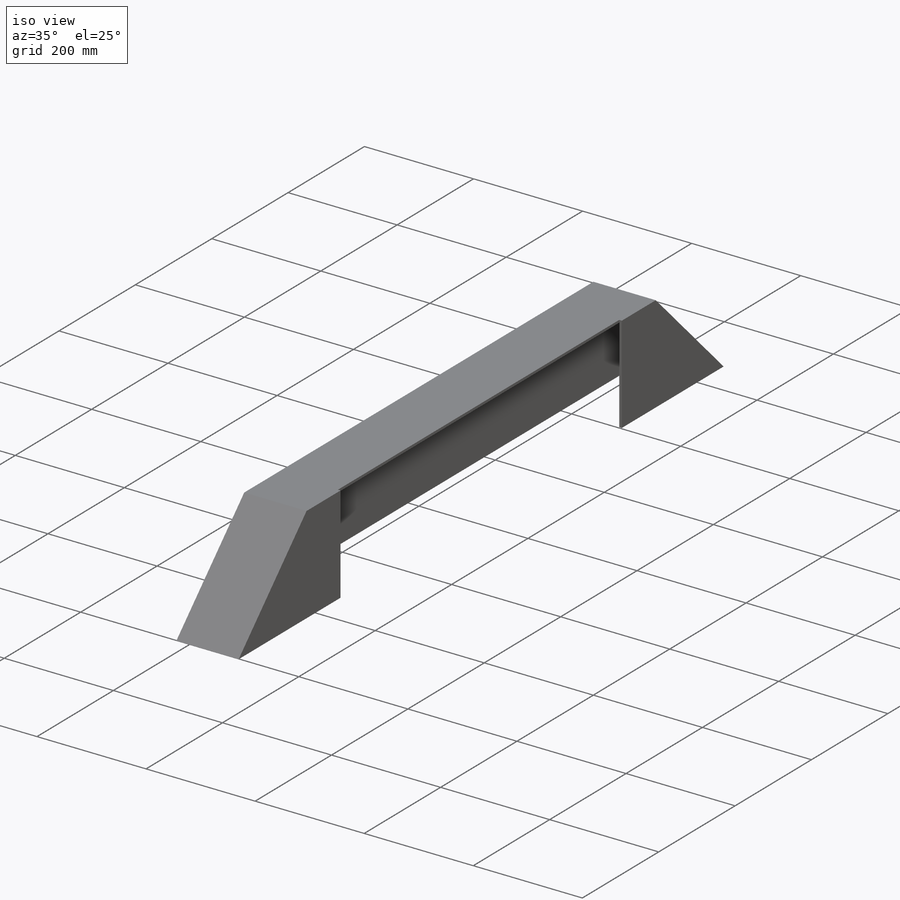
[diagram: iso view]
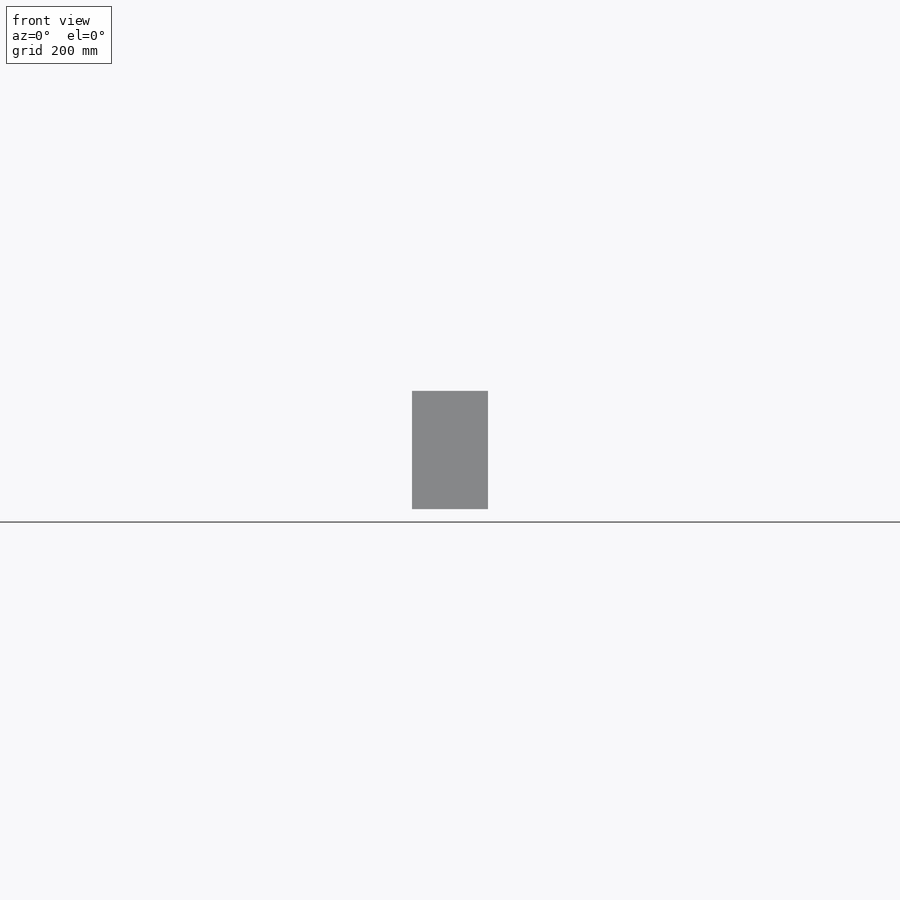
[diagram: front view]
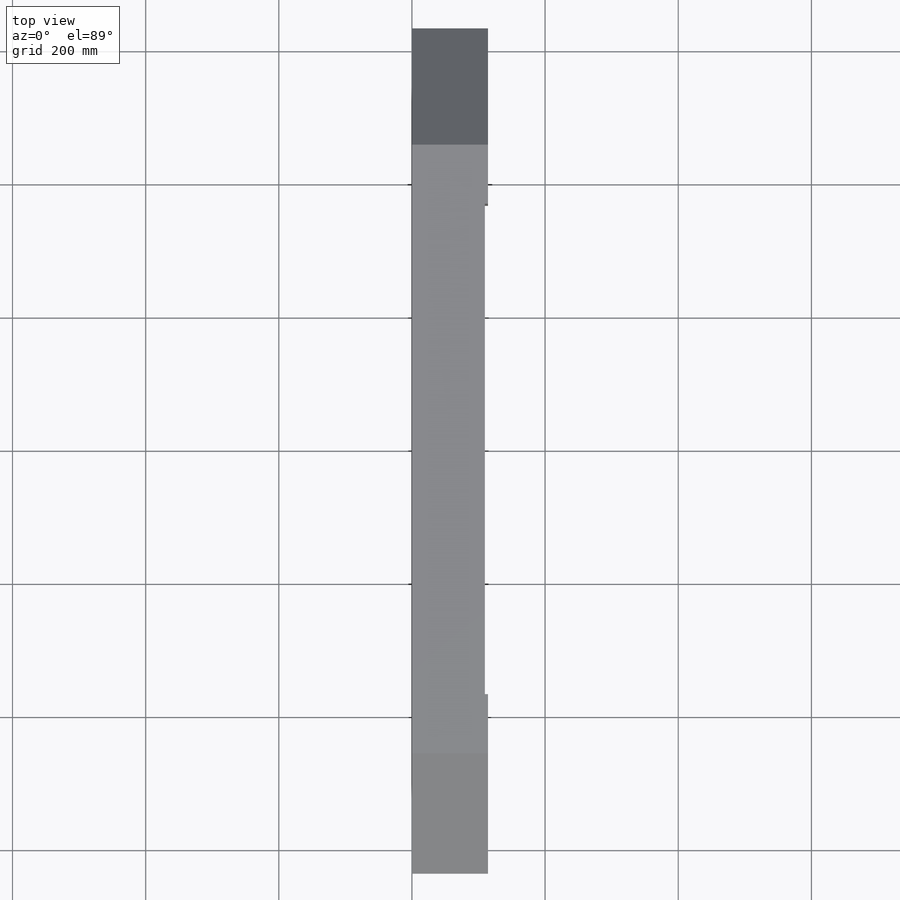
[diagram: top view]
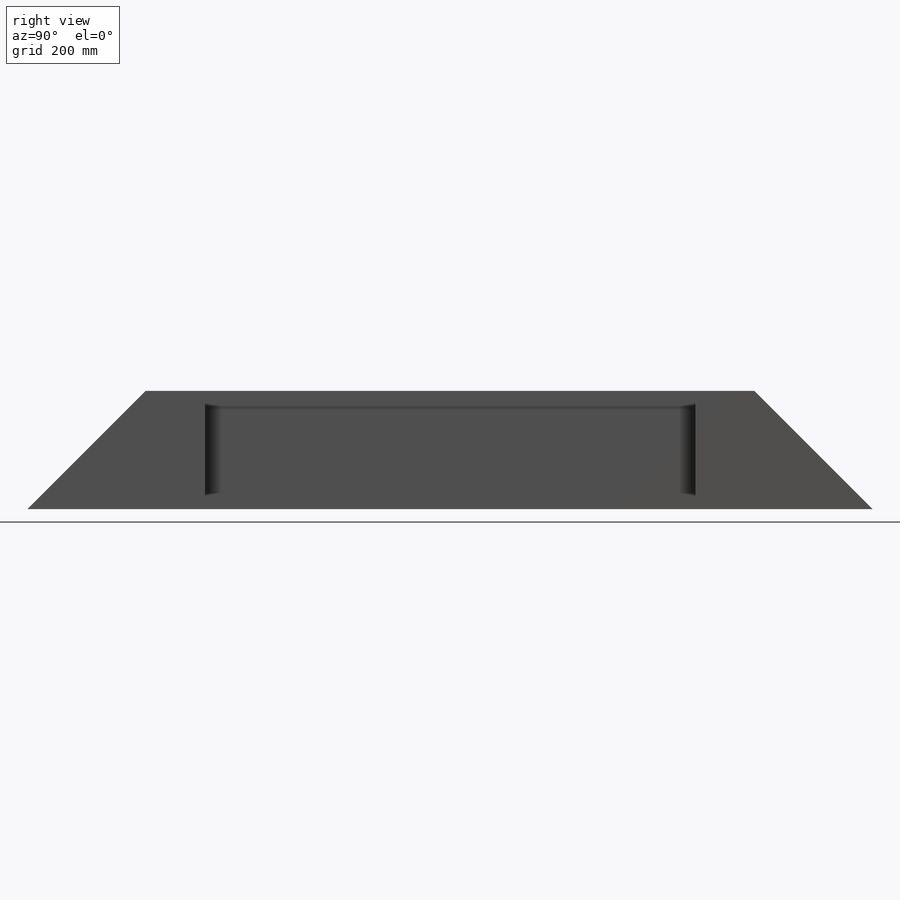
[diagram: right view]
SOLIDWORKS PART (.sldprt)
format: sldprt  version: not decoded by parser v0  size: 152,576 bytes
history: native  units: mm
features: sketch x4, material x1, extrude x1, shell x1, cut_extrude x1 (+12 scaffold rows collapsed)
feature tree (20):
  scaffold x12  (default folders/planes/origin — collapsed)
  material  "Material <not specified>"
  sketch  "Sketch1"  dims[D1=914.4mm D2=177.8mm D3=~251.447171mm D4=1270.0mm]
  extrude  "Boss-Extrude1"  Depth=114.3mm
  shell  "Shell3"  Thickness=4.7625mm
  sketch  "Sketch8"  dims[D1=177.8mm D2=736.6mm]
  cut_extrude  "Cut-Extrude2"  Depth=4.7625mm
  sketch  "Bend-Lines3"
  sketch  "Bounding-Box3"
decode coverage: 5 of 7 modeling features carry decoded parameters
note: ~ marks probable driven/reference dimensions
note: suppression state not decoded; provenance and decode notes live in map.json
